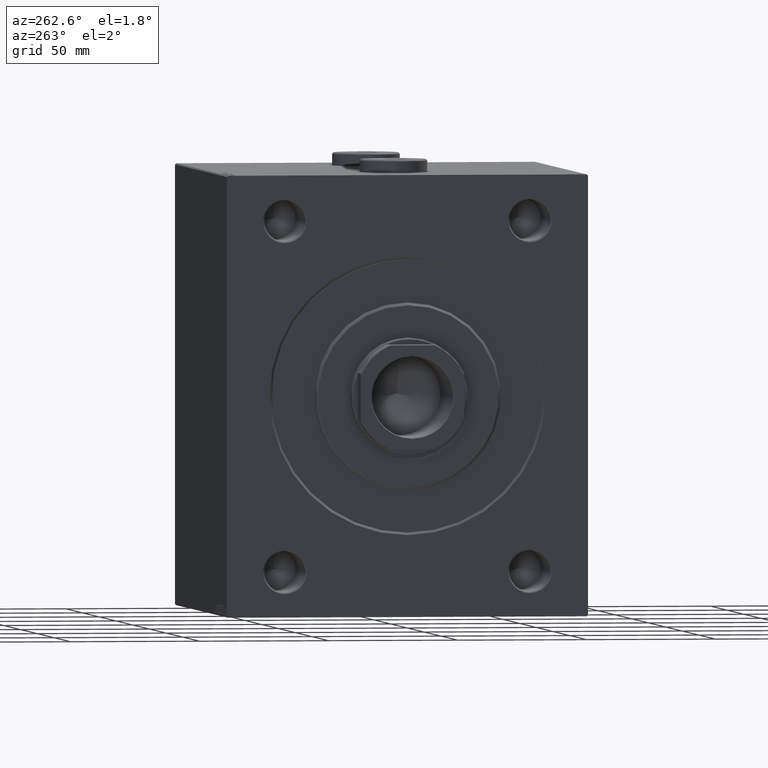
[diagram: clean part render]
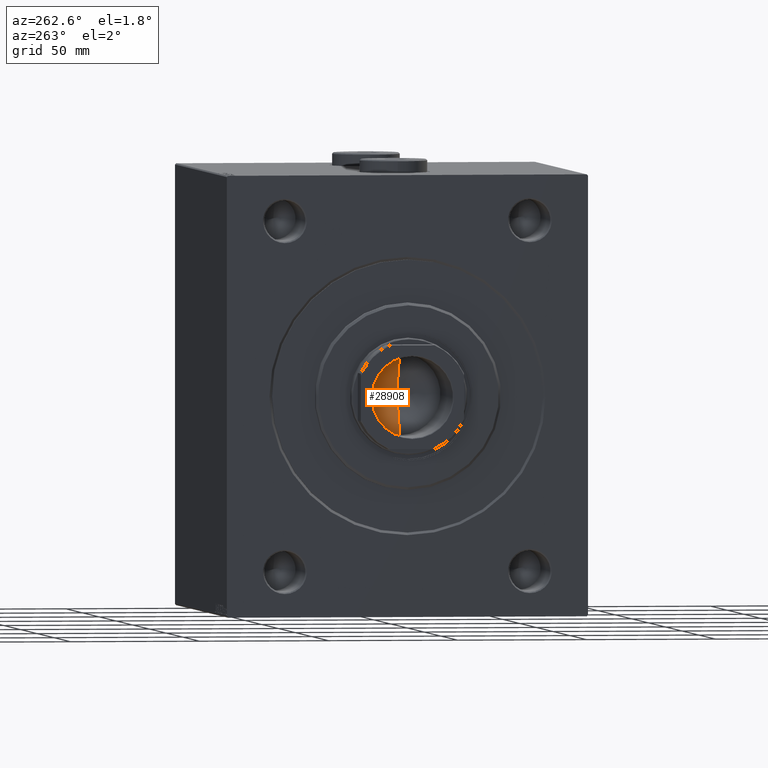
[diagram: same view with one face highlighted and labeled with its STEP entity id]
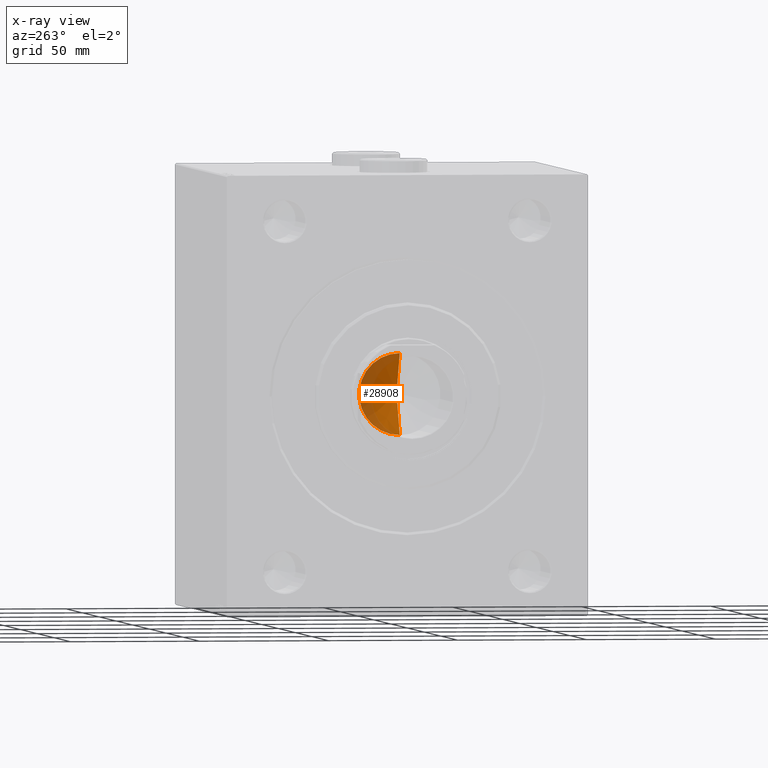
[diagram: x-ray of the same camera — body ghosted, the highlighted face saturated]
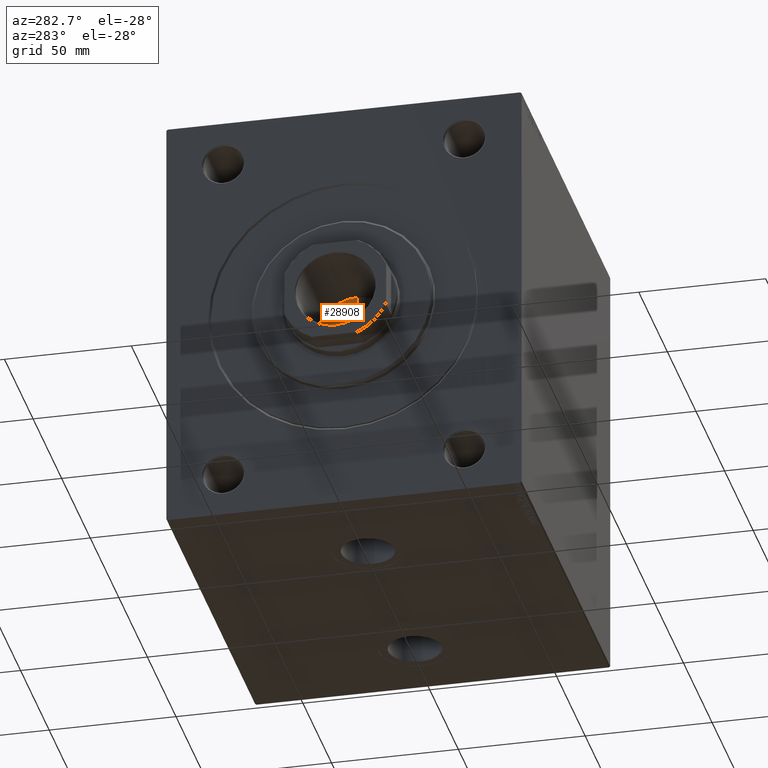
[diagram: same view with one face highlighted and labeled with its STEP entity id]
A machine part, auxiliary view. The second image highlights one B-rep face of the part: STEP entity #28908.
The next image is the same camera in x-ray: the body ghosted, the highlighted face saturated — about 41% of this face is hidden behind the body in this view.
A second angle (auxiliary view) of the same face is appended — the face is thin or edge-on in the first view.
In plain terms, the highlighted conical surface has half-angle 59 deg.
Its self-contained STEP definition (entity closure, byte-faithful):
#258 = CARTESIAN_POINT ( 'NONE',  ( 0.000000000000000000, 0.000000000000000000, 106.0000000000000142 ) ) ;
#1504 = VERTEX_POINT ( 'NONE', #42912 ) ;
#3400 = CARTESIAN_POINT ( 'NONE',  ( -15.74999999999999289, 1.928818708657080556E-15, 106.0000000000000142 ) ) ;
#3723 = EDGE_CURVE ( 'NONE', #41858, #1504, #10076, .T. ) ;
#4243 = EDGE_CURVE ( 'NONE', #23657, #1504, #35039, .T. ) ;
#7632 = CARTESIAN_POINT ( 'NONE',  ( -1.199718644317817648E-14, 0.000000000000000000, 96.53644525031593560 ) ) ;
#10076 = CIRCLE ( 'NONE', #24814, 15.74999999999999289 ) ;
#13883 = DIRECTION ( 'NONE',  ( -0.000000000000000000, -0.000000000000000000, 1.000000000000000000 ) ) ;
#21457 = ORIENTED_EDGE ( 'NONE', *, *, #4243, .F. ) ;
#22288 = DIRECTION ( 'NONE',  ( 0.8571673007021120005, 0.000000000000000000, 0.5150380749100547106 ) ) ;
#22545 = CONICAL_SURFACE ( 'NONE', #28425, 15.74999999999999289, 1.029744258676653867 ) ;
#23459 = CARTESIAN_POINT ( 'NONE',  ( 15.74999999999999289, 0.000000000000000000, 106.0000000000000142 ) ) ;
#23657 = VERTEX_POINT ( 'NONE', #7632 ) ;
#24730 = CARTESIAN_POINT ( 'NONE',  ( 0.000000000000000000, 0.000000000000000000, 106.0000000000000142 ) ) ;
#24814 = AXIS2_PLACEMENT_3D ( 'NONE', #258, #28419, #42546 ) ;
#25186 = FACE_OUTER_BOUND ( 'NONE', #37144, .T. ) ;
#27767 = VECTOR ( 'NONE', #34588, 1000.000000000000000 ) ;
#27984 = VECTOR ( 'NONE', #22288, 1000.000000000000000 ) ;
#28333 = ORIENTED_EDGE ( 'NONE', *, *, #3723, .T. ) ;
#28419 = DIRECTION ( 'NONE',  ( -0.000000000000000000, -0.000000000000000000, 1.000000000000000000 ) ) ;
#28425 = AXIS2_PLACEMENT_3D ( 'NONE', #24730, #13883, #28641 ) ;
#28641 = DIRECTION ( 'NONE',  ( 1.000000000000000000, 0.000000000000000000, 0.000000000000000000 ) ) ;
#28908 = ADVANCED_FACE ( 'NONE', ( #25186 ), #22545, .F. ) ;
#29436 = LINE ( 'NONE', #40082, #27984 ) ;
#33238 = ORIENTED_EDGE ( 'NONE', *, *, #43004, .T. ) ;
#34588 = DIRECTION ( 'NONE',  ( -0.8571673007021120005, 1.049727191138618326E-16, 0.5150380749100547106 ) ) ;
#35039 = LINE ( 'NONE', #3400, #27767 ) ;
#37144 = EDGE_LOOP ( 'NONE', ( #21457, #33238, #28333 ) ) ;
#40082 = CARTESIAN_POINT ( 'NONE',  ( 15.74999999999999289, 0.000000000000000000, 106.0000000000000142 ) ) ;
#41858 = VERTEX_POINT ( 'NONE', #23459 ) ;
#42546 = DIRECTION ( 'NONE',  ( 1.000000000000000000, 0.000000000000000000, 0.000000000000000000 ) ) ;
#42912 = CARTESIAN_POINT ( 'NONE',  ( -15.74999999999999289, 1.928818708657080556E-15, 106.0000000000000142 ) ) ;
#43004 = EDGE_CURVE ( 'NONE', #23657, #41858, #29436, .T. ) ;